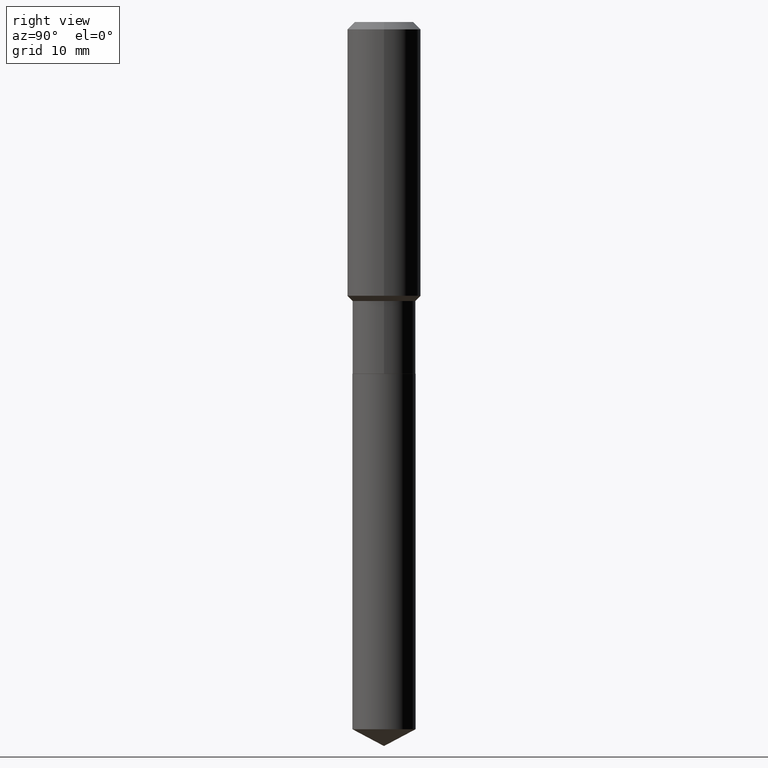
[diagram: clean part render]
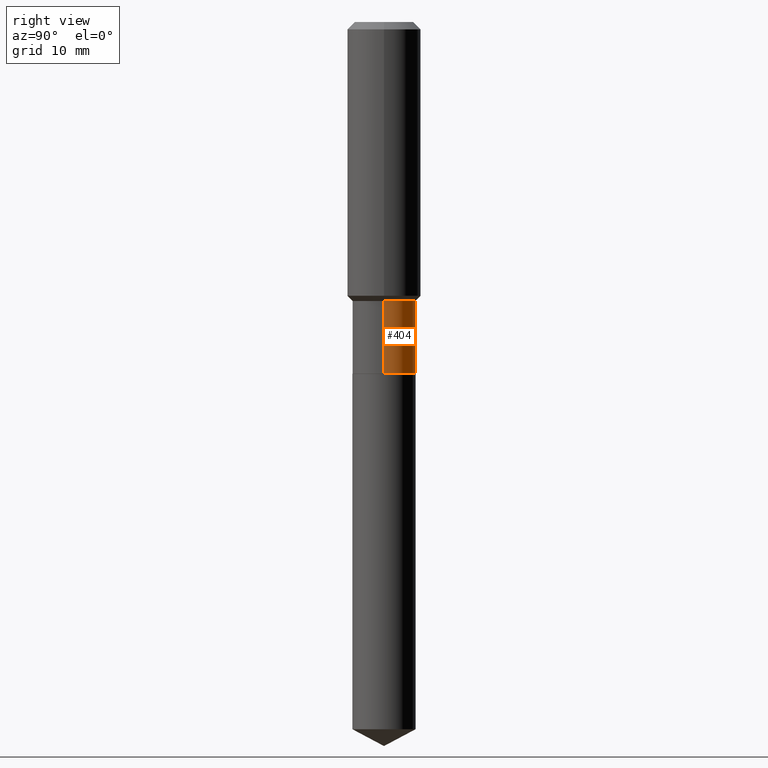
[diagram: same view with one face highlighted and labeled with its STEP entity id]
A machine part, right view. The second image highlights one B-rep face of the part: STEP entity #404.
In plain terms, the highlighted cylindrical surface (edge-blend (fillet) strip) has radius 5.1587 mm, axis along (-0, 0, 1).
Its self-contained STEP definition (entity closure, byte-faithful):
#24 = VECTOR ( 'NONE', #61, 39.37007874015748143 ) ;
#37 = LINE ( 'NONE', #159, #478 ) ;
#45 = CARTESIAN_POINT ( 'NONE',  ( 4.377633709952013450E-29, -6.250100744663115568E-15, -1.790100000000000025 ) ) ;
#51 = VERTEX_POINT ( 'NONE', #114 ) ;
#56 = AXIS2_PLACEMENT_3D ( 'NONE', #273, #304, #307 ) ;
#60 = VERTEX_POINT ( 'NONE', #455 ) ;
#61 = DIRECTION ( 'NONE',  ( -2.445468806185136877E-29, 3.491481338843145188E-15, 1.000000000000000000 ) ) ;
#65 = CARTESIAN_POINT ( 'NONE',  ( 0.000000000000000000, 0.000000000000000000, 0.000000000000000000 ) ) ;
#79 = EDGE_CURVE ( 'NONE', #240, #51, #484, .T. ) ;
#92 = ORIENTED_EDGE ( 'NONE', *, *, #358, .F. ) ;
#114 = CARTESIAN_POINT ( 'NONE',  ( -0.2031000000000000028, -5.621551044686456796E-15, -2.256699999999999928 ) ) ;
#127 = DIRECTION ( 'NONE',  ( -2.445468806185136597E-29, 3.491481338843145583E-15, 1.000000000000000000 ) ) ;
#137 = EDGE_CURVE ( 'NONE', #51, #60, #37, .T. ) ;
#159 = CARTESIAN_POINT ( 'NONE',  ( -0.2031000000000000028, 1.443112296328763497E-15, -9.990357168307714203E-30 ) ) ;
#177 = ORIENTED_EDGE ( 'NONE', *, *, #137, .T. ) ;
#179 = CARTESIAN_POINT ( 'NONE',  ( 0.2030999999999999750, -7.668340464501195554E-15, -1.790100000000000025 ) ) ;
#219 = DIRECTION ( 'NONE',  ( -2.445468806185136597E-29, 3.491481338843145583E-15, 1.000000000000000000 ) ) ;
#240 = VERTEX_POINT ( 'NONE', #315 ) ;
#252 = CIRCLE ( 'NONE', #297, 0.2030999999999999750 ) ;
#256 = FACE_OUTER_BOUND ( 'NONE', #481, .T. ) ;
#267 = AXIS2_PLACEMENT_3D ( 'NONE', #65, #219, #422 ) ;
#273 = CARTESIAN_POINT ( 'NONE',  ( 5.518689454917996847E-29, -7.879225937367325807E-15, -2.256699999999999928 ) ) ;
#297 = AXIS2_PLACEMENT_3D ( 'NONE', #45, #127, #424 ) ;
#304 = DIRECTION ( 'NONE',  ( -2.445468806185136597E-29, 3.491481338843145583E-15, 1.000000000000000000 ) ) ;
#307 = DIRECTION ( 'NONE',  ( 1.000000000000000000, -6.982962677686269866E-15, 0.000000000000000000 ) ) ;
#315 = CARTESIAN_POINT ( 'NONE',  ( 0.2031000000000000028, -9.297465657205407371E-15, -2.256699999999999928 ) ) ;
#351 = EDGE_CURVE ( 'NONE', #429, #60, #252, .T. ) ;
#358 = EDGE_CURVE ( 'NONE', #240, #429, #384, .T. ) ;
#376 = DIRECTION ( 'NONE',  ( -2.445468806185136877E-29, 3.491481338843145188E-15, 1.000000000000000000 ) ) ;
#384 = LINE ( 'NONE', #415, #24 ) ;
#394 = ORIENTED_EDGE ( 'NONE', *, *, #351, .F. ) ;
#401 = CYLINDRICAL_SURFACE ( 'NONE', #267, 0.2031000000000000028 ) ;
#404 = ADVANCED_FACE ( 'NONE', ( #256 ), #401, .T. ) ;
#406 = ORIENTED_EDGE ( 'NONE', *, *, #79, .T. ) ;
#415 = CARTESIAN_POINT ( 'NONE',  ( 0.2031000000000000028, -1.418239719838080775E-15, 9.903515031641546145E-30 ) ) ;
#422 = DIRECTION ( 'NONE',  ( 1.000000000000000000, -6.982962677686266711E-15, 4.876176775795935793E-29 ) ) ;
#424 = DIRECTION ( 'NONE',  ( 1.000000000000000000, -6.982962677686265922E-15, 0.000000000000000000 ) ) ;
#429 = VERTEX_POINT ( 'NONE', #179 ) ;
#455 = CARTESIAN_POINT ( 'NONE',  ( -0.2030999999999999750, -5.621551044686456796E-15, -1.790100000000000025 ) ) ;
#478 = VECTOR ( 'NONE', #376, 39.37007874015748143 ) ;
#481 = EDGE_LOOP ( 'NONE', ( #406, #177, #394, #92 ) ) ;
#484 = CIRCLE ( 'NONE', #56, 0.2031000000000000028 ) ;